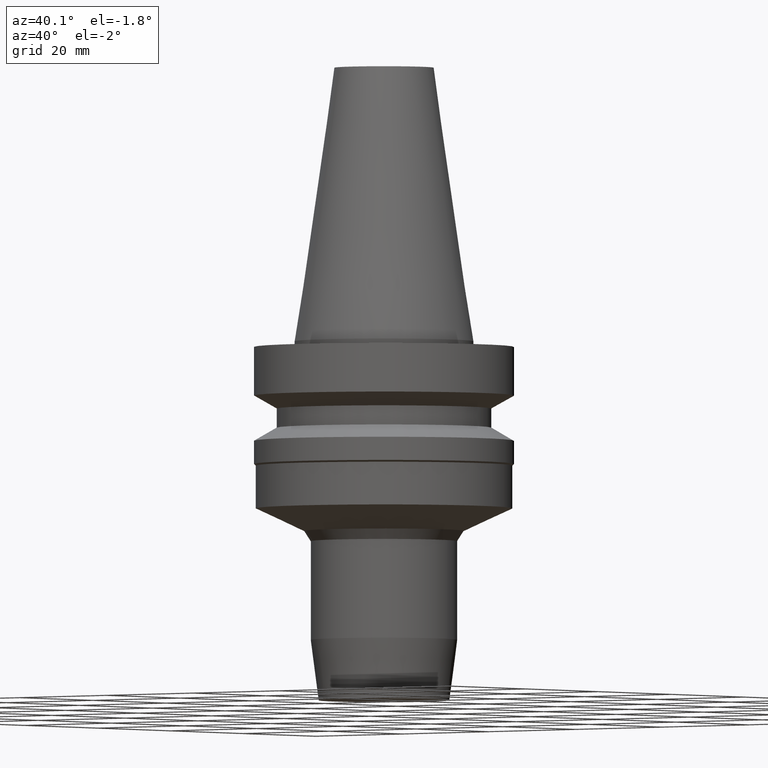
[diagram: clean part render]
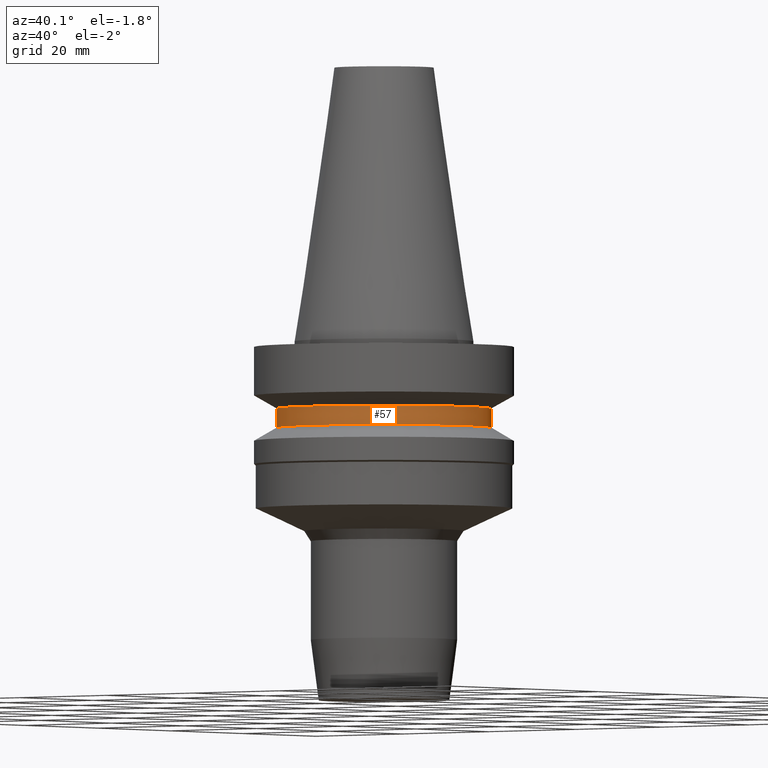
[diagram: same view with one face highlighted and labeled with its STEP entity id]
A machine part, auxiliary view. The second image highlights one B-rep face of the part: STEP entity #57.
In plain terms, the highlighted cylindrical surface (bore or boss wall) has radius 19 mm, axis along (0, 0, -1).
Its self-contained STEP definition (entity closure, byte-faithful):
#57=ADVANCED_FACE('Unnamed[1]',(#154,#155),#156,.T.);
#104=EDGE_CURVE('Unnamed[1]',#230,#230,#231,.T.);
#127=EDGE_CURVE('Unnamed[1]',#263,#263,#264,.T.);
#154=FACE_BOUND('',#287,.T.);
#155=FACE_BOUND('',#288,.T.);
#156=CYLINDRICAL_SURFACE('',#289,19.0);
#230=VERTEX_POINT('',#381);
#231=CIRCLE('',#382,19.0);
#263=VERTEX_POINT('',#423);
#264=CIRCLE('',#424,19.0);
#287=EDGE_LOOP('',(#443));
#288=EDGE_LOOP('',(#444));
#289=AXIS2_PLACEMENT_3D('',#445,#446,#447);
#381=CARTESIAN_POINT('',(7.29240495619202E-016,19.0,-11.90940108));
#382=AXIS2_PLACEMENT_3D('',#531,#532,#533);
#423=CARTESIAN_POINT('',(9.36279151221199E-016,19.0,-15.29059892));
#424=AXIS2_PLACEMENT_3D('',#564,#565,#566);
#443=ORIENTED_EDGE('',*,*,#127,.F.);
#444=ORIENTED_EDGE('',*,*,#104,.T.);
#445=CARTESIAN_POINT('',(8.32759823420201E-016,1.6655196468404E-015,-13.6));
#446=DIRECTION('',(6.12323399573677E-017,1.2246467991475E-016,-1.0));
#447=DIRECTION('',(-1.23259516440783E-032,1.0,1.2246467991475E-016));
#531=CARTESIAN_POINT('',(7.29240495619202E-016,1.4584809912384E-015,-11.90940108));
#532=DIRECTION('',(6.12323399573677E-017,1.2246467991475E-016,-1.0));
#533=DIRECTION('',(-1.23259516440783E-032,1.0,1.2246467991475E-016));
#564=CARTESIAN_POINT('',(9.36279151221199E-016,1.8725583024424E-015,-15.29059892));
#565=DIRECTION('',(6.12323399573677E-017,1.2246467991475E-016,-1.0));
#566=DIRECTION('',(-1.23259516440783E-032,1.0,1.2246467991475E-016));